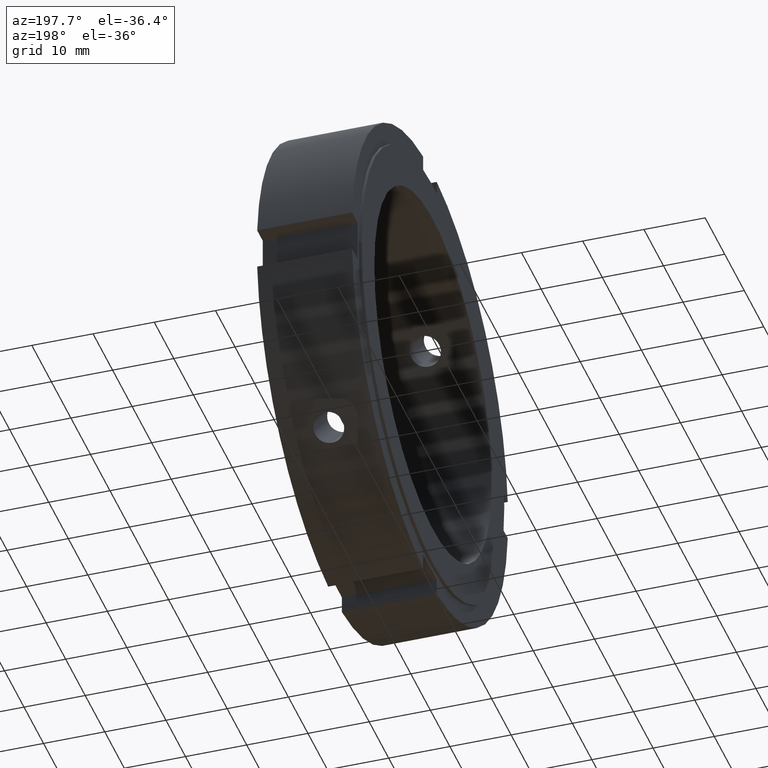
[diagram: clean part render]
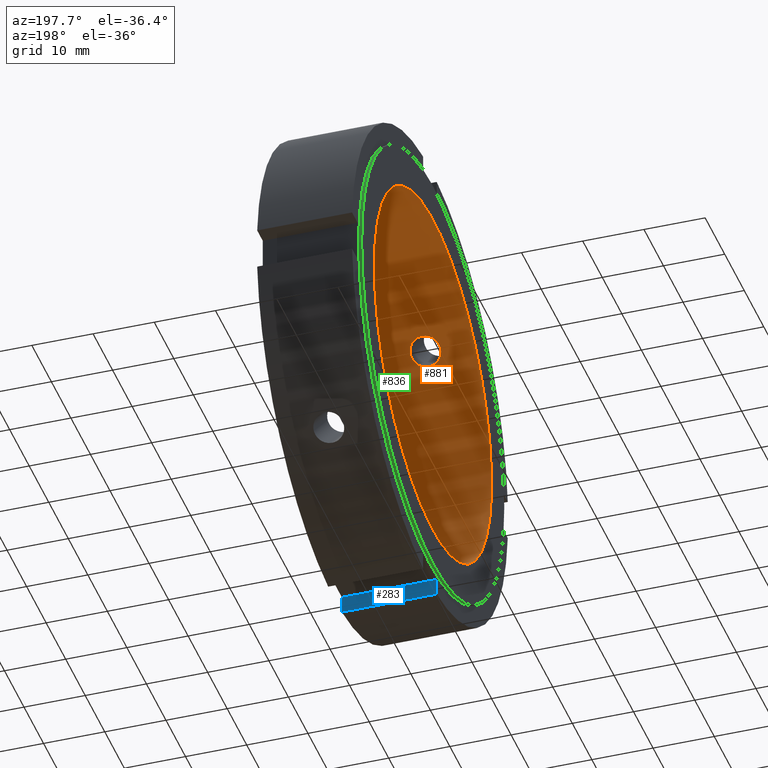
[diagram: same view with three faces highlighted in distinct colors, each labeled with its STEP entity id]
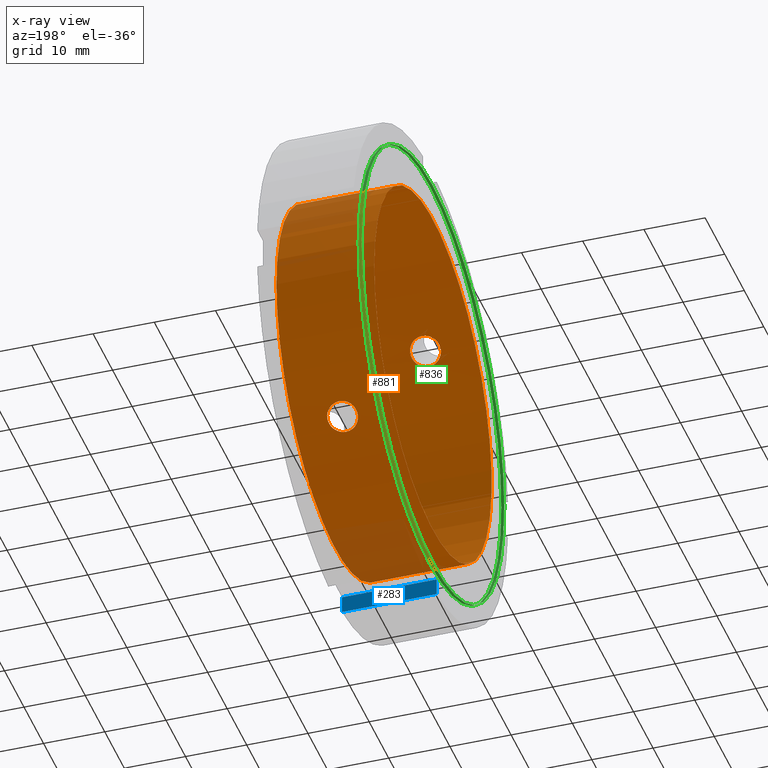
[diagram: x-ray of the same camera — body ghosted, the three highlighted faces saturated]
A machine part, auxiliary view with three faces highlighted in distinct colors.
The next image is the same camera in x-ray (body ghosted, the three faces saturated) — at least one of them is partly hidden behind the body in this view.
Their STEP definitions:

[orange] entity #881 — the highlighted cylindrical surface (bore or boss wall) has radius 30 mm, axis along (1, 0, 0).
#114=CARTESIAN_POINT('',(7.999999999999996,-22.880273616783519,19.403429573689284));
#115=VERTEX_POINT('',#114);
#116=CARTESIAN_POINT('',(7.999999999999995,-22.880273616783512,19.403429573689291));
#117=CARTESIAN_POINT('',(8.308843611765370,-22.880273616783512,19.403429573689291));
#118=CARTESIAN_POINT('',(8.638178228729071,-22.840341369823534,19.450826199776472));
#119=CARTESIAN_POINT('',(9.243860682944099,-22.676371353677808,19.641741672470694));
#120=CARTESIAN_POINT('',(9.520220324096290,-22.552143601723404,19.785059801855631));
#121=CARTESIAN_POINT('',(9.956623385053774,-22.261471751583180,20.111555079182615));
#122=CARTESIAN_POINT('',(10.145807150899822,-22.075587056113051,20.316502145090869));
#123=CARTESIAN_POINT('',(10.396749284862983,-21.660745225535841,20.758225346996003));
#124=CARTESIAN_POINT('',(10.458499999999997,-21.431588513576493,20.994818357616339));
#125=CARTESIAN_POINT('',(10.458499999999997,-20.994818357616303,21.431588513576536));
#126=CARTESIAN_POINT('',(10.396749284862977,-20.758225346995964,21.660745225535880));
#127=CARTESIAN_POINT('',(10.145807150899813,-20.316502145090830,22.075587056113086));
#128=CARTESIAN_POINT('',(9.956623385053774,-20.111555079182576,22.261471751583215));
#129=CARTESIAN_POINT('',(9.520220324096286,-19.785059801855592,22.552143601723429));
#130=CARTESIAN_POINT('',(9.243860682944099,-19.641741672470665,22.676371353677830));
#131=CARTESIAN_POINT('',(8.638178228729071,-19.450826199776444,22.840341369823559));
#132=CARTESIAN_POINT('',(8.308843611765370,-19.403429573689252,22.880273616783555));
#133=CARTESIAN_POINT('',(7.691156388234621,-19.403429573689252,22.880273616783555));
#134=CARTESIAN_POINT('',(7.361821771270919,-19.450826199776447,22.840341369823559));
#135=CARTESIAN_POINT('',(6.756139317055893,-19.641741672470669,22.676371353677830));
#136=CARTESIAN_POINT('',(6.479779675903705,-19.785059801855592,22.552143601723429));
#137=CARTESIAN_POINT('',(6.043376614946220,-20.111555079182576,22.261471751583215));
#138=CARTESIAN_POINT('',(5.854192849100182,-20.316502145090823,22.075587056113086));
#139=CARTESIAN_POINT('',(5.603250715137015,-20.758225346995964,21.660745225535880));
#140=CARTESIAN_POINT('',(5.541499999999997,-20.994818357616303,21.431588513576536));
#141=CARTESIAN_POINT('',(5.541499999999995,-21.431588513576500,20.994818357616339));
#142=CARTESIAN_POINT('',(5.603250715137012,-21.660745225535841,20.758225346996007));
#143=CARTESIAN_POINT('',(5.854192849100171,-22.075587056113047,20.316502145090869));
#144=CARTESIAN_POINT('',(6.043376614946218,-22.261471751583180,20.111555079182615));
#145=CARTESIAN_POINT('',(6.479779675903703,-22.552143601723404,19.785059801855631));
#146=CARTESIAN_POINT('',(6.756139317055892,-22.676371353677808,19.641741672470697));
#147=CARTESIAN_POINT('',(7.361821771270920,-22.840341369823534,19.450826199776476));
#148=CARTESIAN_POINT('',(7.691156388234620,-22.880273616783512,19.403429573689287));
#149=CARTESIAN_POINT('',(7.999999999999995,-22.880273616783512,19.403429573689287));
#150=B_SPLINE_CURVE_WITH_KNOTS('',3,(#116,#117,#118,#119,#120,#121,#122,#123,#124,#125,#126,#127,#128,#129,#130,#131,#132,#133,#134,#135,#136,#137,#138,#139,#140,#141,#142,#143,#144,#145,#146,#147,#148,#149),.UNSPECIFIED.,.T.,.U.,(4,2,2,2,2,2,2,2,2,2,2,2,2,2,2,2,4),(0.0,0.092653083529612,0.185306167059225,0.277959108789031,0.370612050518838,0.463264992248644,0.555917933978451,0.648571017508063,0.741224101037675,0.833877184567287,0.926530268096899,1.019183209826706,1.111836151556512,1.204489093286319,1.297142035016125,1.389795118545738,1.482448202075350),.UNSPECIFIED.);
#151=EDGE_CURVE('',#115,#115,#150,.T.);
#202=CARTESIAN_POINT('',(7.999999999999996,19.403429573689280,-22.880273616783523));
#203=VERTEX_POINT('',#202);
#204=CARTESIAN_POINT('',(7.999999999999996,19.403429573689280,-22.880273616783523));
#205=CARTESIAN_POINT('',(7.691156388234623,19.403429573689280,-22.880273616783523));
#206=CARTESIAN_POINT('',(7.361821771270921,19.450826199776465,-22.840341369823541));
#207=CARTESIAN_POINT('',(6.756139317055894,19.641741672470687,-22.676371353677812));
#208=CARTESIAN_POINT('',(6.479779675903704,19.785059801855610,-22.552143601723415));
#209=CARTESIAN_POINT('',(6.043376614946219,20.111555079182594,-22.261471751583201));
#210=CARTESIAN_POINT('',(5.854192849100182,20.316502145090851,-22.075587056113068));
#211=CARTESIAN_POINT('',(5.603250715137015,20.758225346995985,-21.660745225535862));
#212=CARTESIAN_POINT('',(5.541499999999997,20.994818357616325,-21.431588513576514));
#213=CARTESIAN_POINT('',(5.541499999999995,21.431588513576514,-20.994818357616325));
#214=CARTESIAN_POINT('',(5.603250715137012,21.660745225535859,-20.758225346995989));
#215=CARTESIAN_POINT('',(5.854192849100171,22.075587056113065,-20.316502145090851));
#216=CARTESIAN_POINT('',(6.043376614946218,22.261471751583201,-20.111555079182601));
#217=CARTESIAN_POINT('',(6.479779675903701,22.552143601723419,-19.785059801855613));
#218=CARTESIAN_POINT('',(6.756139317055889,22.676371353677819,-19.641741672470680));
#219=CARTESIAN_POINT('',(7.361821771270915,22.840341369823548,-19.450826199776458));
#220=CARTESIAN_POINT('',(7.691156388234621,22.880273616783530,-19.403429573689273));
#221=CARTESIAN_POINT('',(8.308843611765370,22.880273616783530,-19.403429573689273));
#222=CARTESIAN_POINT('',(8.638178228729078,22.840341369823548,-19.450826199776458));
#223=CARTESIAN_POINT('',(9.243860682944103,22.676371353677819,-19.641741672470680));
#224=CARTESIAN_POINT('',(9.520220324096291,22.552143601723419,-19.785059801855613));
#225=CARTESIAN_POINT('',(9.956623385053774,22.261471751583201,-20.111555079182601));
#226=CARTESIAN_POINT('',(10.145807150899824,22.075587056113065,-20.316502145090851));
#227=CARTESIAN_POINT('',(10.396749284862983,21.660745225535859,-20.758225346995989));
#228=CARTESIAN_POINT('',(10.458499999999997,21.431588513576514,-20.994818357616325));
#229=CARTESIAN_POINT('',(10.458499999999997,20.994818357616325,-21.431588513576514));
#230=CARTESIAN_POINT('',(10.396749284862977,20.758225346995985,-21.660745225535862));
#231=CARTESIAN_POINT('',(10.145807150899813,20.316502145090851,-22.075587056113068));
#232=CARTESIAN_POINT('',(9.956623385053774,20.111555079182594,-22.261471751583201));
#233=CARTESIAN_POINT('',(9.520220324096288,19.785059801855610,-22.552143601723415));
#234=CARTESIAN_POINT('',(9.243860682944099,19.641741672470687,-22.676371353677812));
#235=CARTESIAN_POINT('',(8.638178228729071,19.450826199776465,-22.840341369823541));
#236=CARTESIAN_POINT('',(8.308843611765369,19.403429573689280,-22.880273616783523));
#237=CARTESIAN_POINT('',(7.999999999999996,19.403429573689280,-22.880273616783523));
#238=B_SPLINE_CURVE_WITH_KNOTS('',3,(#204,#205,#206,#207,#208,#209,#210,#211,#212,#213,#214,#215,#216,#217,#218,#219,#220,#221,#222,#223,#224,#225,#226,#227,#228,#229,#230,#231,#232,#233,#234,#235,#236,#237),.UNSPECIFIED.,.T.,.U.,(4,2,2,2,2,2,2,2,2,2,2,2,2,2,2,2,4),(0.0,0.092653083529612,0.185306167059224,0.277959108789030,0.370612050518837,0.463264992248643,0.555917933978450,0.648571017508062,0.741224101037674,0.833877184567286,0.926530268096899,1.019183209826705,1.111836151556511,1.204489093286318,1.297142035016124,1.389795118545736,1.482448202075348),.UNSPECIFIED.);
#239=EDGE_CURVE('',#203,#203,#238,.T.);
#712=CARTESIAN_POINT('',(15.999999999999995,30.0,0.0));
#713=VERTEX_POINT('',#712);
#714=CARTESIAN_POINT('',(15.999999999999995,0.0,0.0));
#715=DIRECTION('',(1.0,0.0,0.0));
#716=DIRECTION('',(0.0,1.0,0.0));
#717=AXIS2_PLACEMENT_3D('',#714,#715,#716);
#718=CIRCLE('',#717,30.0);
#719=EDGE_CURVE('',#713,#713,#718,.T.);
#805=CARTESIAN_POINT('',(-8.290925E-015,30.0,0.0));
#806=VERTEX_POINT('',#805);
#807=CARTESIAN_POINT('',(-8.291978E-015,0.0,0.0));
#808=DIRECTION('',(1.0,0.0,0.0));
#809=DIRECTION('',(0.0,1.0,0.0));
#810=AXIS2_PLACEMENT_3D('',#807,#808,#809);
#811=CIRCLE('',#810,30.0);
#812=EDGE_CURVE('',#806,#806,#811,.T.);
#864=CARTESIAN_POINT('',(7.999999999999993,0.0,0.0));
#865=DIRECTION('',(1.0,0.0,0.0));
#866=DIRECTION('',(0.0,1.0,0.0));
#867=AXIS2_PLACEMENT_3D('',#864,#865,#866);
#868=CYLINDRICAL_SURFACE('',#867,30.0);
#869=ORIENTED_EDGE('',*,*,#812,.F.);
#870=EDGE_LOOP('',(#869));
#871=FACE_OUTER_BOUND('',#870,.T.);
#872=ORIENTED_EDGE('',*,*,#151,.T.);
#873=EDGE_LOOP('',(#872));
#874=FACE_BOUND('',#873,.T.);
#875=ORIENTED_EDGE('',*,*,#239,.T.);
#876=EDGE_LOOP('',(#875));
#877=FACE_BOUND('',#876,.T.);
#878=ORIENTED_EDGE('',*,*,#719,.T.);
#879=EDGE_LOOP('',(#878));
#880=FACE_BOUND('',#879,.T.);
#881=ADVANCED_FACE('',(#871,#874,#877,#880),#868,.F.);

[blue] entity #283 — the highlighted planar face has unit normal (0, -1, 0).
#244=CARTESIAN_POINT('',(15.999999999999993,-3.500000000000005,-36.999999999999993));
#245=DIRECTION('',(0.0,-1.0,0.0));
#246=DIRECTION('',(-1.0,0.0,0.0));
#247=AXIS2_PLACEMENT_3D('',#244,#245,#246);
#248=PLANE('',#247);
#249=CARTESIAN_POINT('',(0.499999999999989,-3.500000000000005,-36.999999999999993));
#250=VERTEX_POINT('',#249);
#251=CARTESIAN_POINT('',(0.499999999999989,-3.500000000000006,-39.846580781793556));
#252=VERTEX_POINT('',#251);
#253=CARTESIAN_POINT('',(0.499999999999989,-3.500000000000007,-36.999999999999993));
#254=DIRECTION('',(0.0,0.0,-1.0));
#255=VECTOR('',#254,2.846580781793563);
#256=LINE('',#253,#255);
#257=EDGE_CURVE('',#250,#252,#256,.T.);
#258=ORIENTED_EDGE('',*,*,#257,.F.);
#259=CARTESIAN_POINT('',(15.999999999999993,-3.500000000000005,-36.999999999999993));
#260=VERTEX_POINT('',#259);
#261=CARTESIAN_POINT('',(15.999999999999993,-3.500000000000005,-36.999999999999993));
#262=DIRECTION('',(-1.0,0.0,0.0));
#263=VECTOR('',#262,15.500000000000004);
#264=LINE('',#261,#263);
#265=EDGE_CURVE('',#260,#250,#264,.T.);
#266=ORIENTED_EDGE('',*,*,#265,.F.);
#267=CARTESIAN_POINT('',(15.999999999999993,-3.500000000000006,-39.846580781793556));
#268=VERTEX_POINT('',#267);
#269=CARTESIAN_POINT('',(15.999999999999993,-3.500000000000005,-39.846580781793556));
#270=DIRECTION('',(0.0,0.0,1.0));
#271=VECTOR('',#270,2.846580781793563);
#272=LINE('',#269,#271);
#273=EDGE_CURVE('',#268,#260,#272,.T.);
#274=ORIENTED_EDGE('',*,*,#273,.F.);
#275=CARTESIAN_POINT('',(0.499999999999990,-3.500000000000006,-39.846580781793556));
#276=DIRECTION('',(1.0,0.0,0.0));
#277=VECTOR('',#276,15.500000000000004);
#278=LINE('',#275,#277);
#279=EDGE_CURVE('',#252,#268,#278,.T.);
#280=ORIENTED_EDGE('',*,*,#279,.F.);
#281=EDGE_LOOP('',(#258,#266,#274,#280));
#282=FACE_OUTER_BOUND('',#281,.T.);
#283=ADVANCED_FACE('',(#282),#248,.F.);

[green] entity #836 — the highlighted cylindrical surface (bore or boss wall) has radius 36.5 mm, axis along (1, 0, 0).
#794=CARTESIAN_POINT('',(-8.881784E-015,36.500000000000000,0.0));
#795=VERTEX_POINT('',#794);
#796=CARTESIAN_POINT('',(-8.881784E-015,0.0,0.0));
#797=DIRECTION('',(1.0,0.0,0.0));
#798=DIRECTION('',(0.0,1.0,0.0));
#799=AXIS2_PLACEMENT_3D('',#796,#797,#798);
#800=CIRCLE('',#799,36.500000000000000);
#801=EDGE_CURVE('',#795,#795,#800,.T.);
#817=CARTESIAN_POINT('',(0.249999999999990,0.0,0.0));
#818=DIRECTION('',(1.0,0.0,0.0));
#819=DIRECTION('',(0.0,1.0,0.0));
#820=AXIS2_PLACEMENT_3D('',#817,#818,#819);
#821=CYLINDRICAL_SURFACE('',#820,36.500000000000000);
#822=CARTESIAN_POINT('',(0.499999999999989,36.500000000000000,0.0));
#823=VERTEX_POINT('',#822);
#824=CARTESIAN_POINT('',(0.499999999999989,0.0,0.0));
#825=DIRECTION('',(1.0,0.0,0.0));
#826=DIRECTION('',(0.0,1.0,0.0));
#827=AXIS2_PLACEMENT_3D('',#824,#825,#826);
#828=CIRCLE('',#827,36.500000000000000);
#829=EDGE_CURVE('',#823,#823,#828,.T.);
#830=ORIENTED_EDGE('',*,*,#829,.F.);
#831=EDGE_LOOP('',(#830));
#832=FACE_OUTER_BOUND('',#831,.T.);
#833=ORIENTED_EDGE('',*,*,#801,.T.);
#834=EDGE_LOOP('',(#833));
#835=FACE_BOUND('',#834,.T.);
#836=ADVANCED_FACE('',(#832,#835),#821,.T.);